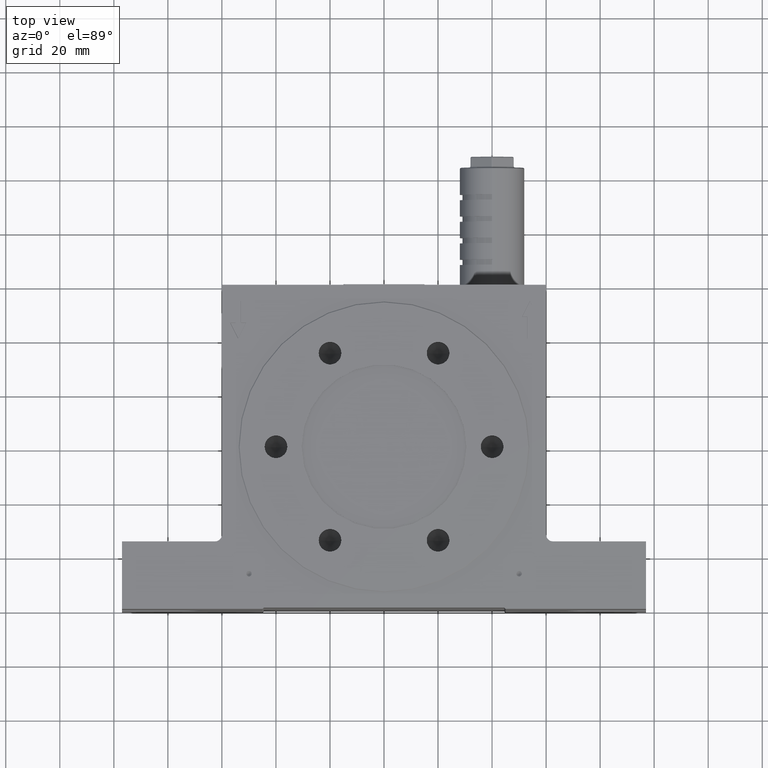
[diagram: clean part render]
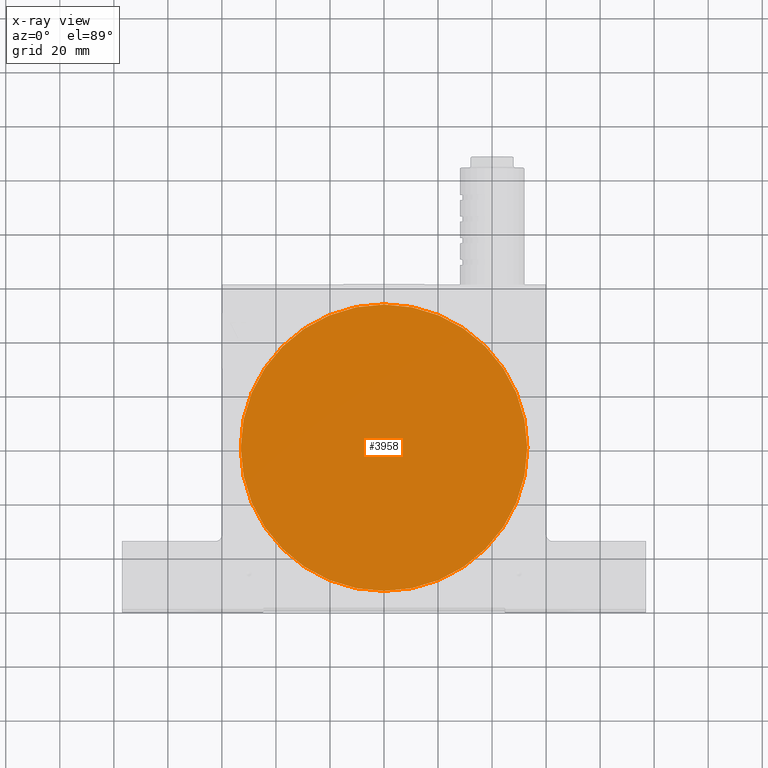
[diagram: x-ray — body ghosted, one internal face saturated and labeled with its STEP entity id]
A machine part, top view, then the same camera in x-ray: the body is ghosted and one INTERNAL B-rep face — a face not visible from any outside direction — is saturated and labeled: STEP entity #3958.
In plain terms, the highlighted planar face has unit normal (0, 0, 1).
Its self-contained STEP definition (entity closure, byte-faithful):
#230 = ORIENTED_EDGE ( 'NONE', *, *, #16232, .T. ) ;
#473 = DIRECTION ( 'NONE',  ( -0.0000000000000000000, -0.0000000000000000000, -1.000000000000000000 ) ) ;
#610 = EDGE_LOOP ( 'NONE', ( #19738, #230 ) ) ;
#1224 = CIRCLE ( 'NONE', #13873, 53.03499999999999700 ) ;
#1262 = DIRECTION ( 'NONE',  ( 0.0000000000000000000, 0.0000000000000000000, 1.000000000000000000 ) ) ;
#1991 = FACE_OUTER_BOUND ( 'NONE', #610, .T. ) ;
#2005 = AXIS2_PLACEMENT_3D ( 'NONE', #16137, #17808, #5933 ) ;
#3564 = AXIS2_PLACEMENT_3D ( 'NONE', #15101, #1262, #11535 ) ;
#3958 = ADVANCED_FACE ( 'NONE', ( #1991 ), #4848, .F. ) ;
#4158 = VERTEX_POINT ( 'NONE', #16212 ) ;
#4848 = PLANE ( 'NONE',  #3564 ) ;
#4912 = VERTEX_POINT ( 'NONE', #20405 ) ;
#5933 = DIRECTION ( 'NONE',  ( 1.000000000000000000, 0.0000000000000000000, 0.0000000000000000000 ) ) ;
#9054 = EDGE_CURVE ( 'NONE', #4158, #4912, #1224, .T. ) ;
#11535 = DIRECTION ( 'NONE',  ( 1.000000000000000000, 0.0000000000000000000, 0.0000000000000000000 ) ) ;
#13873 = AXIS2_PLACEMENT_3D ( 'NONE', #19358, #473, #19063 ) ;
#15101 = CARTESIAN_POINT ( 'NONE',  ( 0.0000000000000000000, 6.494804694057099500E-015, 22.25000000000000000 ) ) ;
#15387 = CIRCLE ( 'NONE', #2005, 53.03499999999999700 ) ;
#16137 = CARTESIAN_POINT ( 'NONE',  ( 0.0000000000000000000, 6.494804694057099500E-015, 22.25000000000000000 ) ) ;
#16212 = CARTESIAN_POINT ( 'NONE',  ( 53.03499999999999700, 6.494804694057099500E-015, 22.25000000000000000 ) ) ;
#16232 = EDGE_CURVE ( 'NONE', #4912, #4158, #15387, .T. ) ;
#17808 = DIRECTION ( 'NONE',  ( -0.0000000000000000000, -0.0000000000000000000, -1.000000000000000000 ) ) ;
#19063 = DIRECTION ( 'NONE',  ( 1.000000000000000000, 0.0000000000000000000, 0.0000000000000000000 ) ) ;
#19358 = CARTESIAN_POINT ( 'NONE',  ( 0.0000000000000000000, 6.494804694057099500E-015, 22.25000000000000000 ) ) ;
#19738 = ORIENTED_EDGE ( 'NONE', *, *, #9054, .T. ) ;
#20405 = CARTESIAN_POINT ( 'NONE',  ( -53.03499999999999700, 1.300196546132656200E-014, 22.25000000000000000 ) ) ;